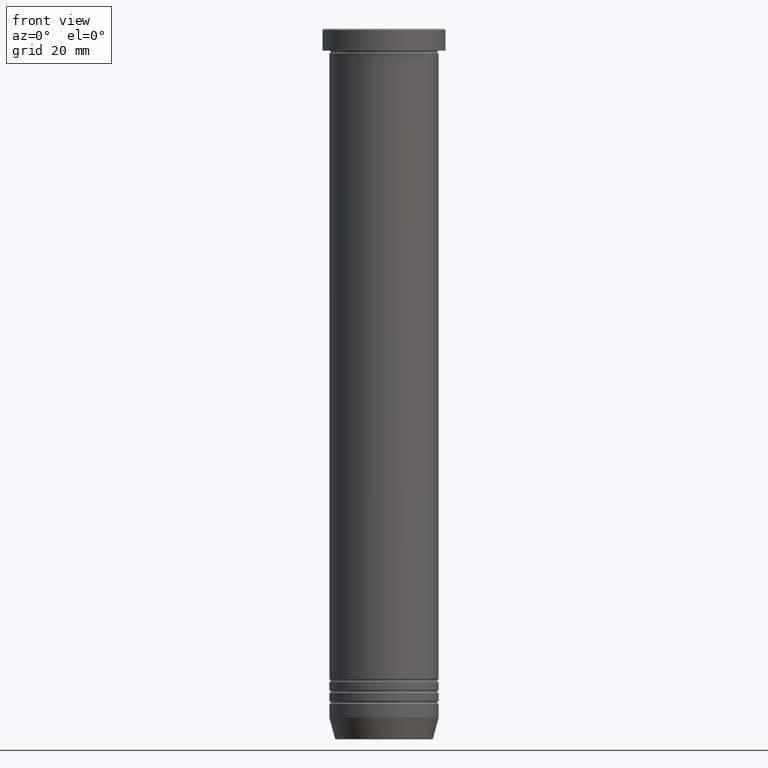
[diagram: clean part render]
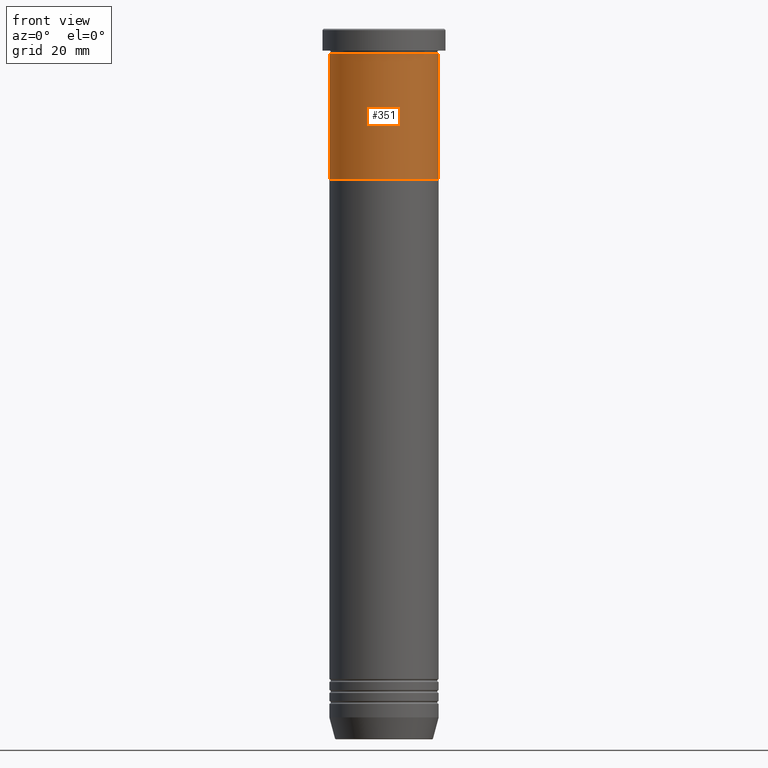
[diagram: same view with one face highlighted and labeled with its STEP entity id]
A machine part, front view. The second image highlights one B-rep face of the part: STEP entity #351.
In plain terms, the highlighted cylindrical surface (partial cylindrical patch) has radius 20 mm, axis along (-0, -0, 1).
Its self-contained STEP definition (entity closure, byte-faithful):
#72 = VERTEX_POINT ( 'NONE', #775 ) ;
#146 = DIRECTION ( 'NONE',  ( 1.000000000000000000, 0.000000000000000000, 0.000000000000000000 ) ) ;
#179 = EDGE_LOOP ( 'NONE', ( #267, #394, #541, #911 ) ) ;
#192 = CARTESIAN_POINT ( 'NONE',  ( 0.000000000000000000, 0.000000000000000000, -54.99999999999999289 ) ) ;
#267 = ORIENTED_EDGE ( 'NONE', *, *, #532, .F. ) ;
#281 = LINE ( 'NONE', #638, #738 ) ;
#290 = AXIS2_PLACEMENT_3D ( 'NONE', #324, #654, #398 ) ;
#324 = CARTESIAN_POINT ( 'NONE',  ( 0.000000000000000000, 0.000000000000000000, -9.000000000000001776 ) ) ;
#346 = VERTEX_POINT ( 'NONE', #892 ) ;
#351 = ADVANCED_FACE ( 'NONE', ( #475 ), #1036, .T. ) ;
#361 = DIRECTION ( 'NONE',  ( 1.000000000000000000, 0.000000000000000000, 0.000000000000000000 ) ) ;
#394 = ORIENTED_EDGE ( 'NONE', *, *, #792, .T. ) ;
#398 = DIRECTION ( 'NONE',  ( 1.000000000000000000, 0.000000000000000000, 0.000000000000000000 ) ) ;
#408 = AXIS2_PLACEMENT_3D ( 'NONE', #727, #730, #146 ) ;
#425 = AXIS2_PLACEMENT_3D ( 'NONE', #192, #759, #361 ) ;
#462 = CIRCLE ( 'NONE', #425, 20.00000000000000000 ) ;
#475 = FACE_OUTER_BOUND ( 'NONE', #179, .T. ) ;
#483 = CIRCLE ( 'NONE', #290, 20.00000000000000000 ) ;
#532 = EDGE_CURVE ( 'NONE', #346, #72, #281, .T. ) ;
#541 = ORIENTED_EDGE ( 'NONE', *, *, #726, .T. ) ;
#562 = VERTEX_POINT ( 'NONE', #849 ) ;
#573 = VECTOR ( 'NONE', #958, 1000.000000000000000 ) ;
#638 = CARTESIAN_POINT ( 'NONE',  ( -20.00000000000000000, 2.449293598294706513E-15, 0.000000000000000000 ) ) ;
#654 = DIRECTION ( 'NONE',  ( -0.000000000000000000, -0.000000000000000000, 1.000000000000000000 ) ) ;
#710 = EDGE_CURVE ( 'NONE', #72, #562, #483, .T. ) ;
#726 = EDGE_CURVE ( 'NONE', #731, #562, #739, .T. ) ;
#727 = CARTESIAN_POINT ( 'NONE',  ( 0.000000000000000000, 0.000000000000000000, 0.000000000000000000 ) ) ;
#730 = DIRECTION ( 'NONE',  ( -0.000000000000000000, -0.000000000000000000, 1.000000000000000000 ) ) ;
#731 = VERTEX_POINT ( 'NONE', #949 ) ;
#738 = VECTOR ( 'NONE', #777, 1000.000000000000000 ) ;
#739 = LINE ( 'NONE', #1054, #573 ) ;
#759 = DIRECTION ( 'NONE',  ( -0.000000000000000000, -0.000000000000000000, 1.000000000000000000 ) ) ;
#775 = CARTESIAN_POINT ( 'NONE',  ( -20.00000000000000000, 2.449293598294706513E-15, -9.000000000000001776 ) ) ;
#777 = DIRECTION ( 'NONE',  ( -0.000000000000000000, -0.000000000000000000, 1.000000000000000000 ) ) ;
#792 = EDGE_CURVE ( 'NONE', #346, #731, #462, .T. ) ;
#849 = CARTESIAN_POINT ( 'NONE',  ( 20.00000000000000000, 0.000000000000000000, -9.000000000000001776 ) ) ;
#892 = CARTESIAN_POINT ( 'NONE',  ( -20.00000000000000000, 2.449293598294706513E-15, -54.99999999999999289 ) ) ;
#911 = ORIENTED_EDGE ( 'NONE', *, *, #710, .F. ) ;
#949 = CARTESIAN_POINT ( 'NONE',  ( 20.00000000000000000, 0.000000000000000000, -54.99999999999999289 ) ) ;
#958 = DIRECTION ( 'NONE',  ( -0.000000000000000000, -0.000000000000000000, 1.000000000000000000 ) ) ;
#1036 = CYLINDRICAL_SURFACE ( 'NONE', #408, 20.00000000000000000 ) ;
#1054 = CARTESIAN_POINT ( 'NONE',  ( 20.00000000000000000, 0.000000000000000000, 0.000000000000000000 ) ) ;